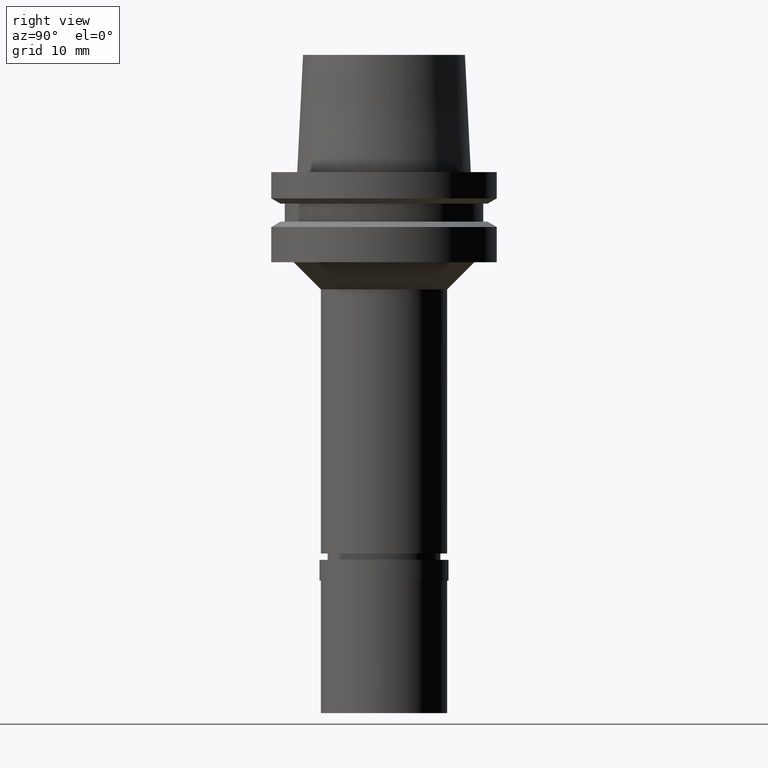
[diagram: clean part render]
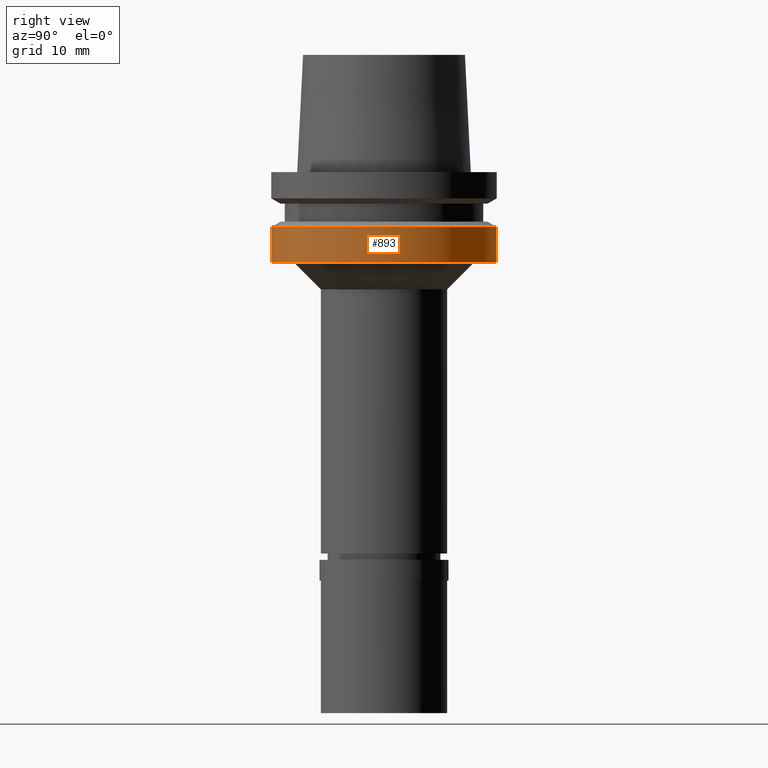
[diagram: same view with one face highlighted and labeled with its STEP entity id]
A machine part, right view. The second image highlights one B-rep face of the part: STEP entity #893.
In plain terms, the highlighted cylindrical surface (partial cylindrical patch) has radius 12.5 mm, axis along (0, 0, 1).
Its self-contained STEP definition (entity closure, byte-faithful):
#26 = EDGE_CURVE ( 'NONE', #519, #1340, #501, .T. ) ;
#32 = CARTESIAN_POINT ( 'NONE',  ( 0.0000000000000000000, 12.50000000000000000, -10.00000000000000000 ) ) ;
#69 = CIRCLE ( 'NONE', #977, 12.50000000000000000 ) ;
#98 = ORIENTED_EDGE ( 'NONE', *, *, #1889, .T. ) ;
#138 = FACE_OUTER_BOUND ( 'NONE', #1510, .T. ) ;
#240 = CARTESIAN_POINT ( 'NONE',  ( 0.0000000000000000000, 12.50000000000000000, -6.087713240272000448 ) ) ;
#413 = AXIS2_PLACEMENT_3D ( 'NONE', #2540, #1479, #2061 ) ;
#482 = DIRECTION ( 'NONE',  ( 0.0000000000000000000, 0.0000000000000000000, -1.000000000000000000 ) ) ;
#501 = LINE ( 'NONE', #908, #2255 ) ;
#519 = VERTEX_POINT ( 'NONE', #2462 ) ;
#527 = CARTESIAN_POINT ( 'NONE',  ( 0.0000000000000000000, -12.50000000000000000, -10.00000000000000000 ) ) ;
#686 = CIRCLE ( 'NONE', #413, 12.50000000000000000 ) ;
#732 = VECTOR ( 'NONE', #882, 1000.000000000000000 ) ;
#882 = DIRECTION ( 'NONE',  ( 0.0000000000000000000, 1.825263569095999977E-13, -1.000000000000000000 ) ) ;
#893 = ADVANCED_FACE ( 'NONE', ( #138 ), #2232, .T. ) ;
#908 = CARTESIAN_POINT ( 'NONE',  ( 0.0000000000000000000, -12.50000000000000000, -6.087713240272000448 ) ) ;
#934 = DIRECTION ( 'NONE',  ( 0.0000000000000000000, -1.825263569095999977E-13, -1.000000000000000000 ) ) ;
#977 = AXIS2_PLACEMENT_3D ( 'NONE', #1543, #482, #1334 ) ;
#995 = DIRECTION ( 'NONE',  ( 0.0000000000000000000, 1.000000000000000000, 0.0000000000000000000 ) ) ;
#1033 = EDGE_CURVE ( 'NONE', #1340, #1718, #686, .T. ) ;
#1200 = CARTESIAN_POINT ( 'NONE',  ( 0.0000000000000000000, 0.0000000000000000000, -59.45000000000000284 ) ) ;
#1334 = DIRECTION ( 'NONE',  ( 0.0000000000000000000, 1.000000000000000000, 0.0000000000000000000 ) ) ;
#1340 = VERTEX_POINT ( 'NONE', #527 ) ;
#1425 = ORIENTED_EDGE ( 'NONE', *, *, #26, .T. ) ;
#1479 = DIRECTION ( 'NONE',  ( 0.0000000000000000000, 0.0000000000000000000, 1.000000000000000000 ) ) ;
#1510 = EDGE_LOOP ( 'NONE', ( #98, #1425, #1811, #1570 ) ) ;
#1543 = CARTESIAN_POINT ( 'NONE',  ( 0.0000000000000000000, 0.0000000000000000000, -6.087713240272999649 ) ) ;
#1570 = ORIENTED_EDGE ( 'NONE', *, *, #1994, .F. ) ;
#1718 = VERTEX_POINT ( 'NONE', #32 ) ;
#1811 = ORIENTED_EDGE ( 'NONE', *, *, #1033, .T. ) ;
#1837 = VERTEX_POINT ( 'NONE', #2116 ) ;
#1889 = EDGE_CURVE ( 'NONE', #1837, #519, #69, .T. ) ;
#1994 = EDGE_CURVE ( 'NONE', #1837, #1718, #2079, .T. ) ;
#2061 = DIRECTION ( 'NONE',  ( 0.0000000000000000000, -1.000000000000000000, 0.0000000000000000000 ) ) ;
#2079 = LINE ( 'NONE', #240, #732 ) ;
#2116 = CARTESIAN_POINT ( 'NONE',  ( 0.0000000000000000000, 12.50000000000000000, -6.087713240272000448 ) ) ;
#2232 = CYLINDRICAL_SURFACE ( 'NONE', #2245, 12.50000000000000000 ) ;
#2244 = DIRECTION ( 'NONE',  ( 0.0000000000000000000, 0.0000000000000000000, 1.000000000000000000 ) ) ;
#2245 = AXIS2_PLACEMENT_3D ( 'NONE', #1200, #2244, #995 ) ;
#2255 = VECTOR ( 'NONE', #934, 1000.000000000000000 ) ;
#2462 = CARTESIAN_POINT ( 'NONE',  ( 0.0000000000000000000, -12.50000000000000000, -6.087713240272000448 ) ) ;
#2540 = CARTESIAN_POINT ( 'NONE',  ( 0.0000000000000000000, 0.0000000000000000000, -10.00000000000000000 ) ) ;